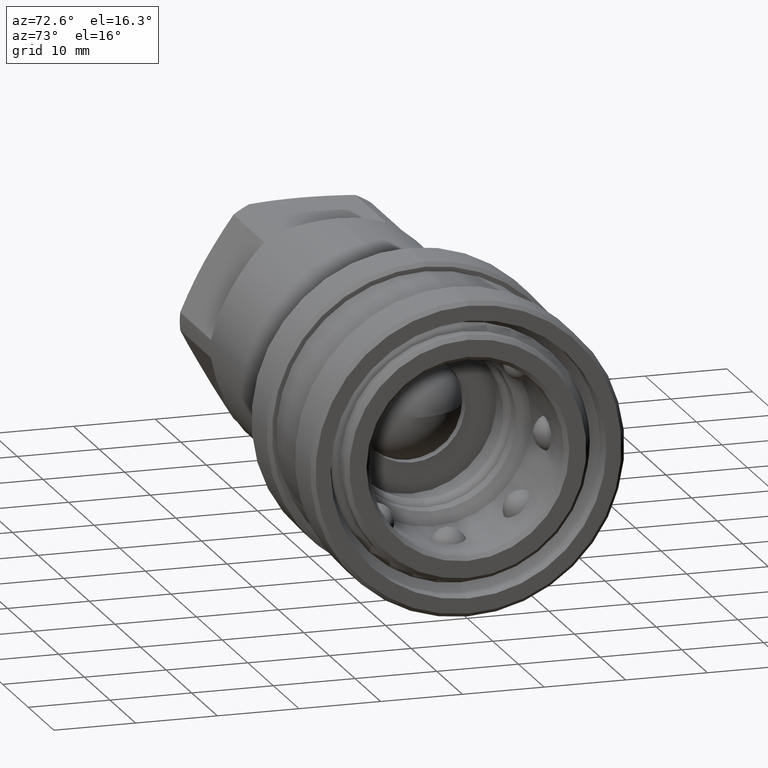
[diagram: clean part render]
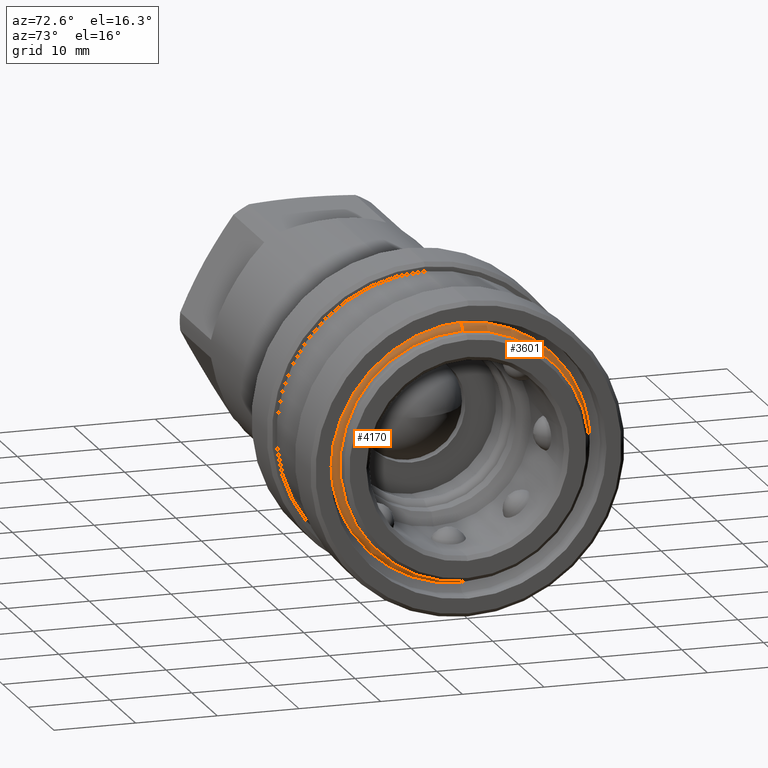
[diagram: same view with one multi-face feature highlighted, each face labeled with its STEP entity id]
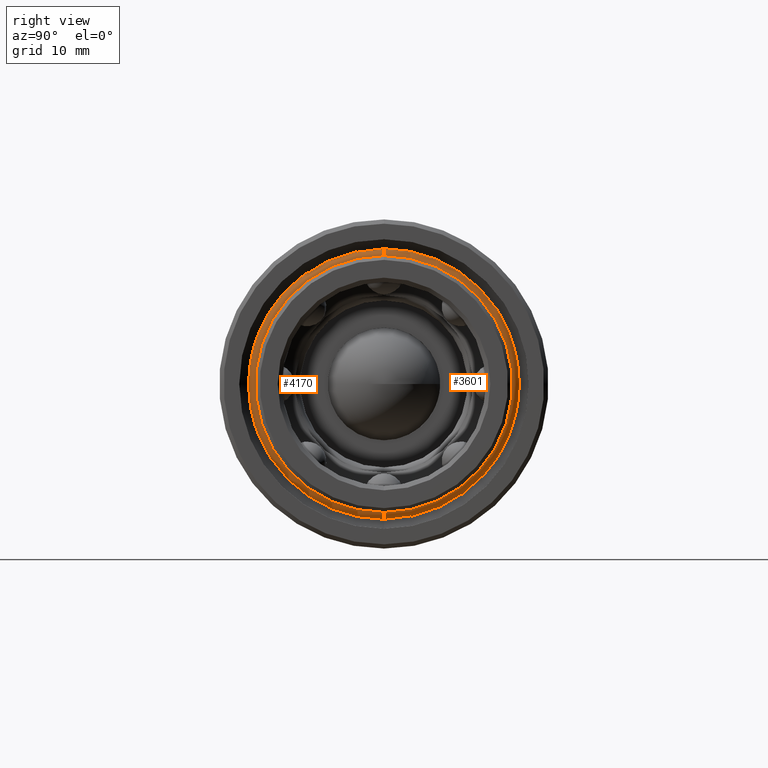
[diagram: same view with one multi-face feature highlighted, each face labeled with its STEP entity id]
A machine part, auxiliary view. The highlighted faces form ONE feature: a constant-radius fillet chain: 2 tangent blend faces with common blend radius 0.9 mm. The faces share edges in the B-rep.
A second angle (right view) of the same feature is appended — it is thin or edge-on in the first view.
Their STEP definitions:
[1] entity #3601 (Torus):
#9 = DIRECTION ( 'NONE',  ( -1.000000000000000000, 3.733948038163713664E-16, -1.743219798561495170E-15 ) ) ;
#241 = ORIENTED_EDGE ( 'NONE', *, *, #2255, .F. ) ;
#714 = CARTESIAN_POINT ( 'NONE',  ( 201870.3350463244133, 201918.9340169888164, 15.69901750183327849 ) ) ;
#924 = ORIENTED_EDGE ( 'NONE', *, *, #5368, .T. ) ;
#935 = CARTESIAN_POINT ( 'NONE',  ( 201870.7491727989109, 201918.9340169888164, -14.89995601197117914 ) ) ;
#969 = AXIS2_PLACEMENT_3D ( 'NONE', #935, #2688, #5228 ) ;
#1054 = CARTESIAN_POINT ( 'NONE',  ( 201871.6435999899113, 201918.9340169888164, 14.99995601297358760 ) ) ;
#1145 = AXIS2_PLACEMENT_3D ( 'NONE', #3792, #5117, #1195 ) ;
#1195 = DIRECTION ( 'NONE',  ( 0.000000000000000000, 0.000000000000000000, -1.000000000000000000 ) ) ;
#1226 = TOROIDAL_SURFACE ( 'NONE', #2618, 14.89995601247074042, 0.9000000000060699445 ) ;
#1608 = DIRECTION ( 'NONE',  ( 0.000000000000000000, 0.000000000000000000, 1.000000000000000000 ) ) ;
#1612 = VERTEX_POINT ( 'NONE', #4800 ) ;
#1870 = EDGE_CURVE ( 'NONE', #2035, #2464, #4807, .T. ) ;
#2035 = VERTEX_POINT ( 'NONE', #1054 ) ;
#2080 = CIRCLE ( 'NONE', #1145, 0.9000000000060695005 ) ;
#2094 = AXIS2_PLACEMENT_3D ( 'NONE', #2497, #3794, #1608 ) ;
#2111 = DIRECTION ( 'NONE',  ( -1.743219798561495170E-15, 6.509092146926838984E-31, 1.000000000000000000 ) ) ;
#2255 = EDGE_CURVE ( 'NONE', #2638, #1612, #2877, .T. ) ;
#2464 = VERTEX_POINT ( 'NONE', #4806 ) ;
#2497 = CARTESIAN_POINT ( 'NONE',  ( 201871.6435999899113, 201918.9340169888164, 4.995431389970102564E-10 ) ) ;
#2618 = AXIS2_PLACEMENT_3D ( 'NONE', #4372, #9, #2111 ) ;
#2638 = VERTEX_POINT ( 'NONE', #714 ) ;
#2688 = DIRECTION ( 'NONE',  ( 3.733948038163728948E-16, 1.000000000000000000, -8.628582544400926620E-16 ) ) ;
#2877 = CIRCLE ( 'NONE', #3150, 15.69901750124813589 ) ;
#2999 = DIRECTION ( 'NONE',  ( 0.000000000000000000, 0.000000000000000000, 1.000000000000000000 ) ) ;
#3150 = AXIS2_PLACEMENT_3D ( 'NONE', #3905, #5203, #2999 ) ;
#3371 = ORIENTED_EDGE ( 'NONE', *, *, #4143, .F. ) ;
#3484 = FACE_OUTER_BOUND ( 'NONE', #5108, .T. ) ;
#3601 = ADVANCED_FACE ( 'NONE', ( #3484 ), #1226, .T. ) ;
#3792 = CARTESIAN_POINT ( 'NONE',  ( 201870.7491727989109, 201918.9340169888164, 14.89995601297027328 ) ) ;
#3794 = DIRECTION ( 'NONE',  ( -1.000000000000000000, 3.733948038163713664E-16, -1.743219798561495170E-15 ) ) ;
#3905 = CARTESIAN_POINT ( 'NONE',  ( 201870.3350463244133, 201918.9340169888164, 4.995476482392603208E-10 ) ) ;
#4143 = EDGE_CURVE ( 'NONE', #2035, #2638, #2080, .T. ) ;
#4339 = CIRCLE ( 'NONE', #969, 0.9000000000060695005 ) ;
#4372 = CARTESIAN_POINT ( 'NONE',  ( 201870.7491727989109, 201918.9340169888164, 4.995462211700885539E-10 ) ) ;
#4800 = CARTESIAN_POINT ( 'NONE',  ( 201870.3350463244133, 201918.9340169888164, -15.69901750083418257 ) ) ;
#4806 = CARTESIAN_POINT ( 'NONE',  ( 201871.6435999899113, 201918.9340169888164, -14.99995601197451478 ) ) ;
#4807 = CIRCLE ( 'NONE', #2094, 14.99995601247404409 ) ;
#5108 = EDGE_LOOP ( 'NONE', ( #5213, #924, #241, #3371 ) ) ;
#5117 = DIRECTION ( 'NONE',  ( -3.733948038163730920E-16, -1.000000000000000000, 9.853229343548278101E-16 ) ) ;
#5203 = DIRECTION ( 'NONE',  ( -1.000000000000000000, 3.733948038163713664E-16, -1.743219798561495170E-15 ) ) ;
#5213 = ORIENTED_EDGE ( 'NONE', *, *, #1870, .T. ) ;
#5228 = DIRECTION ( 'NONE',  ( 0.000000000000000000, 0.000000000000000000, 1.000000000000000000 ) ) ;
#5368 = EDGE_CURVE ( 'NONE', #2464, #1612, #4339, .T. ) ;
[2] entity #4170 (Torus):
#353 = CARTESIAN_POINT ( 'NONE',  ( 201870.3350463244133, 201918.9340169888164, 4.995476482392603208E-10 ) ) ;
#386 = DIRECTION ( 'NONE',  ( -1.743219798561495170E-15, 6.509092146926838984E-31, 1.000000000000000000 ) ) ;
#410 = DIRECTION ( 'NONE',  ( 0.000000000000000000, 0.000000000000000000, 1.000000000000000000 ) ) ;
#714 = CARTESIAN_POINT ( 'NONE',  ( 201870.3350463244133, 201918.9340169888164, 15.69901750183327849 ) ) ;
#760 = DIRECTION ( 'NONE',  ( -1.000000000000000000, 3.733948038163713664E-16, -1.743219798561495170E-15 ) ) ;
#935 = CARTESIAN_POINT ( 'NONE',  ( 201870.7491727989109, 201918.9340169888164, -14.89995601197117914 ) ) ;
#969 = AXIS2_PLACEMENT_3D ( 'NONE', #935, #2688, #5228 ) ;
#1054 = CARTESIAN_POINT ( 'NONE',  ( 201871.6435999899113, 201918.9340169888164, 14.99995601297358760 ) ) ;
#1057 = AXIS2_PLACEMENT_3D ( 'NONE', #4241, #760, #386 ) ;
#1066 = ORIENTED_EDGE ( 'NONE', *, *, #4143, .T. ) ;
#1145 = AXIS2_PLACEMENT_3D ( 'NONE', #3792, #5117, #1195 ) ;
#1195 = DIRECTION ( 'NONE',  ( 0.000000000000000000, 0.000000000000000000, -1.000000000000000000 ) ) ;
#1597 = DIRECTION ( 'NONE',  ( -1.000000000000000000, 3.733948038163713664E-16, -1.743219798561495170E-15 ) ) ;
#1612 = VERTEX_POINT ( 'NONE', #4800 ) ;
#2035 = VERTEX_POINT ( 'NONE', #1054 ) ;
#2080 = CIRCLE ( 'NONE', #1145, 0.9000000000060695005 ) ;
#2140 = ORIENTED_EDGE ( 'NONE', *, *, #2148, .T. ) ;
#2148 = EDGE_CURVE ( 'NONE', #2464, #2035, #3062, .T. ) ;
#2464 = VERTEX_POINT ( 'NONE', #4806 ) ;
#2512 = DIRECTION ( 'NONE',  ( 0.000000000000000000, 0.000000000000000000, 1.000000000000000000 ) ) ;
#2614 = FACE_OUTER_BOUND ( 'NONE', #3556, .T. ) ;
#2638 = VERTEX_POINT ( 'NONE', #714 ) ;
#2688 = DIRECTION ( 'NONE',  ( 3.733948038163728948E-16, 1.000000000000000000, -8.628582544400926620E-16 ) ) ;
#2966 = DIRECTION ( 'NONE',  ( -1.000000000000000000, 3.733948038163713664E-16, -1.743219798561495170E-15 ) ) ;
#2975 = CIRCLE ( 'NONE', #3790, 15.69901750124813589 ) ;
#3062 = CIRCLE ( 'NONE', #5125, 14.99995601247404409 ) ;
#3556 = EDGE_LOOP ( 'NONE', ( #4075, #2140, #1066, #5201 ) ) ;
#3790 = AXIS2_PLACEMENT_3D ( 'NONE', #353, #1597, #2512 ) ;
#3792 = CARTESIAN_POINT ( 'NONE',  ( 201870.7491727989109, 201918.9340169888164, 14.89995601297027328 ) ) ;
#4075 = ORIENTED_EDGE ( 'NONE', *, *, #5368, .F. ) ;
#4143 = EDGE_CURVE ( 'NONE', #2035, #2638, #2080, .T. ) ;
#4170 = ADVANCED_FACE ( 'NONE', ( #2614 ), #5236, .T. ) ;
#4241 = CARTESIAN_POINT ( 'NONE',  ( 201870.7491727989109, 201918.9340169888164, 4.995462211700885539E-10 ) ) ;
#4339 = CIRCLE ( 'NONE', #969, 0.9000000000060695005 ) ;
#4800 = CARTESIAN_POINT ( 'NONE',  ( 201870.3350463244133, 201918.9340169888164, -15.69901750083418257 ) ) ;
#4806 = CARTESIAN_POINT ( 'NONE',  ( 201871.6435999899113, 201918.9340169888164, -14.99995601197451478 ) ) ;
#5117 = DIRECTION ( 'NONE',  ( -3.733948038163730920E-16, -1.000000000000000000, 9.853229343548278101E-16 ) ) ;
#5125 = AXIS2_PLACEMENT_3D ( 'NONE', #5579, #2966, #410 ) ;
#5201 = ORIENTED_EDGE ( 'NONE', *, *, #5324, .F. ) ;
#5228 = DIRECTION ( 'NONE',  ( 0.000000000000000000, 0.000000000000000000, 1.000000000000000000 ) ) ;
#5236 = TOROIDAL_SURFACE ( 'NONE', #1057, 14.89995601247074042, 0.9000000000060699445 ) ;
#5324 = EDGE_CURVE ( 'NONE', #1612, #2638, #2975, .T. ) ;
#5368 = EDGE_CURVE ( 'NONE', #2464, #1612, #4339, .T. ) ;
#5579 = CARTESIAN_POINT ( 'NONE',  ( 201871.6435999899113, 201918.9340169888164, 4.995431389970102564E-10 ) ) ;